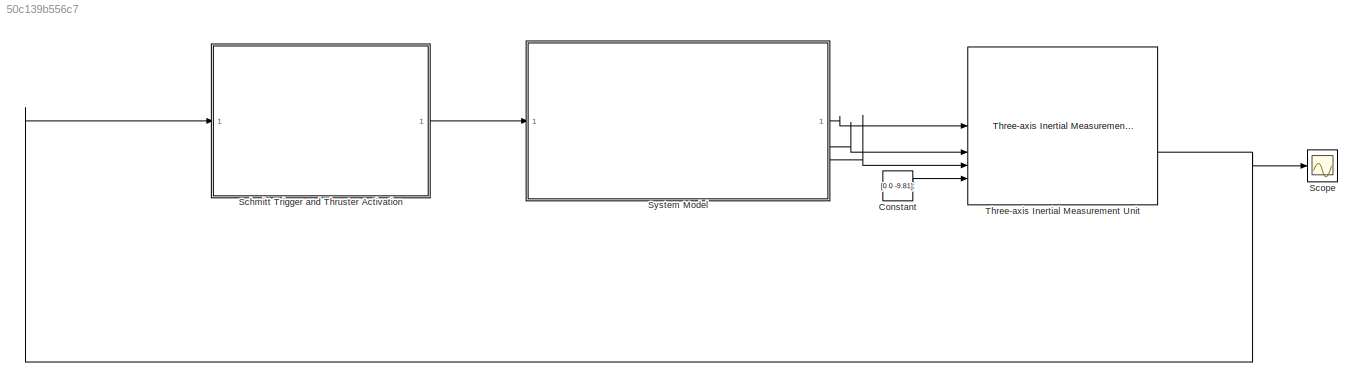
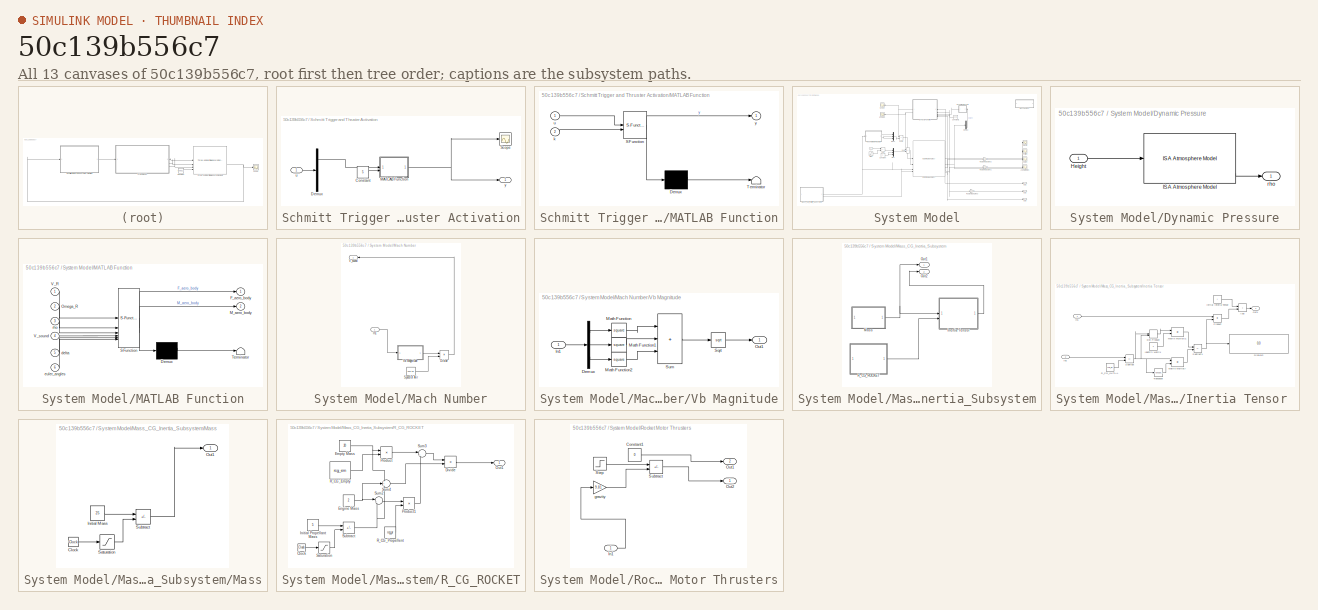
[diagram: thumbnail index - all 13 canvases of the model, root first then tree order]
MODEL slx_50c139b556c7
KIND model
CONFIG AbsTol = auto
CONFIG EnableMultiTasking = off
CONFIG FixedStep = auto
CONFIG MaxStep = auto
CONFIG MinStep = auto
CONFIG RelTol = 1e-3
CONFIG SampleTimeConstraint = Unconstrained
CONFIG SolverName = VariableStepAuto
CONFIG StartTime = 0.0
CONFIG StopTime = 35
BLOCK [Constant] Constant
  Value = [0 0 -9.81];
BLOCK [SubSystem] Schmitt Trigger and Thruster Activation
BLOCK [Constant] Schmitt Trigger and Thruster Activation/Constant
  Value = 5
BLOCK [Demux] Schmitt Trigger and Thruster Activation/Demux
  Outputs = 3
BLOCK [SubSystem] Schmitt Trigger and Thruster Activation/MATLAB Function
  ErrorFcn = Stateflow.Translate.translate
  PermitHierarchicalResolution = ExplicitOnly
  SFBlockType = MATLAB Function
  TreatAsAtomicUnit = on
BLOCK [Demux] Schmitt Trigger and Thruster Activation/MATLAB Function/ Demux 
  Outputs = 1
BLOCK [S-Function] Schmitt Trigger and Thruster Activation/MATLAB Function/ SFunction 
  EnableBusSupport = off
  FunctionName = sf_sfun
  PortCounts = [2 2]
  SFcnIsStateOwnerBlock = off
  SFunctionDeploymentMode = off
  Tag = Stateflow S-Function 2
BLOCK [Terminator] Schmitt Trigger and Thruster Activation/MATLAB Function/ Terminator 
BLOCK [Inport] Schmitt Trigger and Thruster Activation/MATLAB Function/k
  Port = 2
BLOCK [Inport] Schmitt Trigger and Thruster Activation/MATLAB Function/u
BLOCK [Outport] Schmitt Trigger and Thruster Activation/MATLAB Function/y
BLOCK [Scope] Schmitt Trigger and Thruster Activation/Scope
  ActiveDisplayYMaximum = 1
  ActiveDisplayYMinimum = -1
  DataLoggingVariableName = ScopeData1
  Floating = off
  GraphicalSettings = {"GraphicalSettings":{"LegacySettings":true,"Style":{"Style":{"AxesColor":"[0 0 0]","ChannelNames":[""],"ColorOrder":"[1 1 0.0666666666666667;0.0745098039215686 0.623529411764706 1;1 0.411764705882353 0.16078431372549;0.392156862745098 0.831372549019608 0.0745098039215686;0.717647058823529 0.274509803921569 1;0.0588235294117647 1 1;1 0.0745098039215686 0.650980392156863]","CurrentConfiguration":"e...<+343ch>
  MultipleDisplayCache = [{"MaxYLimMag":1,"MaxYLimReal":1,"MinYLimMag":0,"MinYLimReal":-1,"PlotAsMagnitudePhase":false,"ShowGrid":true,"ShowLegend":false,"Title":"%<SignalLabel>","YLabel":""}]
  NumInputPorts = 1
  WasSavedAsWebScope = on
BLOCK [Inport] Schmitt Trigger and Thruster Activation/u
BLOCK [Outport] Schmitt Trigger and Thruster Activation/y
BLOCK [Scope] Scope
  ActiveDisplayYMaximum = 684.51815
  ActiveDisplayYMinimum = -512.19994
  DataLoggingVariableName = ScopeData1
  Floating = off
  GraphicalSettings = {"GraphicalSettings":{"LegacySettings":true,"Style":{"Style":{"AxesColor":"[0 0 0]","ChannelNames":[""],"ColorOrder":"[1 1 0.0666666666666667;0.0745098039215686 0.623529411764706 1;1 0.411764705882353 0.16078431372549;0.392156862745098 0.831372549019608 0.0745098039215686;0.717647058823529 0.274509803921569 1;0.0588235294117647 1 1;1 0.0745098039215686 0.650980392156863]","CurrentConfiguration":"e...<+349ch>
  MultipleDisplayCache = [{"MaxYLimMag":684.51815,"MaxYLimReal":684.51815,"MinYLimMag":0,"MinYLimReal":-512.19994,"PlotAsMagnitudePhase":false,"ShowGrid":true,"ShowLegend":false,"Title":"%<SignalLabel>","YLabel":""}]
  NumInputPorts = 1
  WasSavedAsWebScope = on
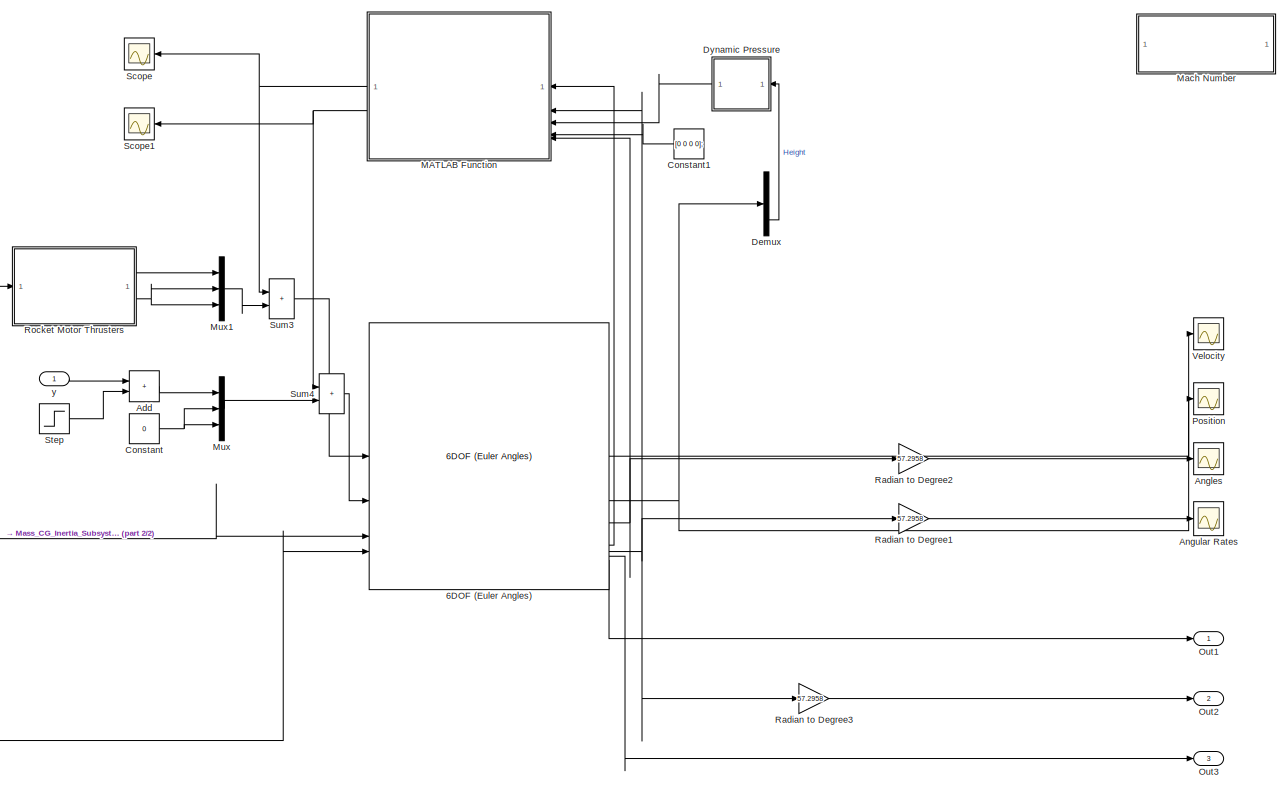
[diagram: System Model - part 1/2, center side, full height]
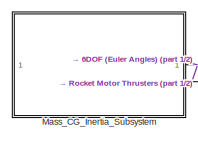
[diagram: System Model - part 2/2, bottom left region]
BLOCK [SubSystem] System Model
BLOCK [Reference] System Model/6DOF (Euler Angles)  REF=aerolibobsolete/6DOF (Euler Angles)
  SourceBlock = aerolibobsolete/6DOF (Euler Angles)
  SourceType = 6DOF EoM (Body Axis)
BLOCK [Sum] System Model/Add
  IconShape = rectangular
BLOCK [Scope] System Model/Angles
  ActiveDisplayYMaximum = 224.80777
  ActiveDisplayYMinimum = -224.95066
  DataLoggingVariableName = ScopeData4
  Floating = off
  GraphicalSettings = {"GraphicalSettings":{"LegacySettings":true,"Style":{"Style":{"AxesColor":"[0 0 0]","ChannelNames":[""],"ColorOrder":"[1 1 0.0666666666666667;0.0745098039215686 0.623529411764706 1;1 0.411764705882353 0.16078431372549;0.392156862745098 0.831372549019608 0.0745098039215686;0.717647058823529 0.274509803921569 1;0.0588235294117647 1 1;1 0.0745098039215686 0.650980392156863]","CurrentConfiguration":"e...<+409ch>
  MultipleDisplayCache = [{"MaxYLimMag":224.95066,"MaxYLimReal":224.80777,"MinYLimMag":0,"MinYLimReal":-224.95066,"PlotAsMagnitudePhase":false,"ShowGrid":true,"ShowLegend":true,"Title":"%<SignalLabel>","YLabel":""}]
  NumInputPorts = 1
  ShowLegend = on
  WasSavedAsWebScope = on
BLOCK [Scope] System Model/Angular Rates
  ActiveDisplayYMaximum = 685.03419
  ActiveDisplayYMinimum = -512.27604
  DataLoggingVariableName = ScopeData1
  Floating = off
  GraphicalSettings = {"GraphicalSettings":{"LegacySettings":true,"Style":{"AxesScalingProperties":{"ScaleAxesLimitsAtStop":false},"Style":{"AxesColor":"[0 0 0]","ChannelNames":[""],"ColorOrder":"[1 1 0.0666666666666667;0.0745098039215686 0.623529411764706 1;1 0.411764705882353 0.16078431372549;0.392156862745098 0.831372549019608 0.0745098039215686;0.717647058823529 0.274509803921569 1;0.0588235294117647 1 1;1 0.074509...<+476ch>
  MultipleDisplayCache = [{"MaxYLimMag":685.03419,"MaxYLimReal":685.03419,"MinYLimMag":0,"MinYLimReal":-512.27604,"PlotAsMagnitudePhase":false,"ShowGrid":true,"ShowLegend":true,"Title":"%<SignalLabel>","YLabel":""}]
  NumInputPorts = 1
  ShowLegend = on
  WasSavedAsWebScope = on
BLOCK [Constant] System Model/Constant
  Value = 0
BLOCK [Constant] System Model/Constant1
  NameLocation = top
  Value = [0 0 0 0];
BLOCK [Demux] System Model/Demux
  Outputs = 3
BLOCK [SubSystem] System Model/Dynamic Pressure
  NameLocation = top
BLOCK [Inport] System Model/Dynamic Pressure/Height
BLOCK [Reference] System Model/Dynamic Pressure/ISA Atmosphere Model  REF=aerolibatmos2/ISA Atmosphere Model
  SourceBlock = aerolibatmos2/ISA Atmosphere Model
  SourceType = International Standard Atmosphere Model
BLOCK [Outport] System Model/Dynamic Pressure/rho
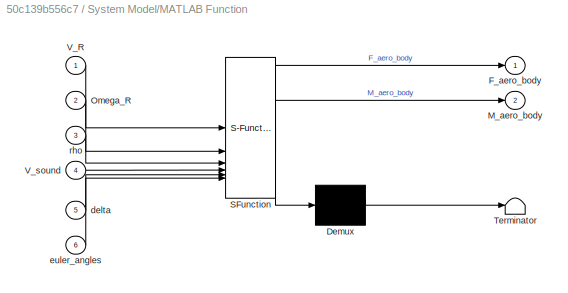
BLOCK [SubSystem] System Model/MATLAB Function
  ErrorFcn = Stateflow.Translate.translate
  NameLocation = top
  PermitHierarchicalResolution = ExplicitOnly
  SFBlockType = MATLAB Function
  TreatAsAtomicUnit = on
BLOCK [Demux] System Model/MATLAB Function/ Demux 
  Outputs = 1
BLOCK [S-Function] System Model/MATLAB Function/ SFunction 
  EnableBusSupport = off
  FunctionName = sf_sfun
  PortCounts = [6 3]
  SFcnIsStateOwnerBlock = off
  SFunctionDeploymentMode = off
  Tag = Stateflow S-Function 1
BLOCK [Terminator] System Model/MATLAB Function/ Terminator 
BLOCK [Outport] System Model/MATLAB Function/F_aero_body
BLOCK [Outport] System Model/MATLAB Function/M_aero_body
  Port = 2
BLOCK [Inport] System Model/MATLAB Function/Omega_R
  Port = 2
BLOCK [Inport] System Model/MATLAB Function/V_R
BLOCK [Inport] System Model/MATLAB Function/V_sound
  Port = 4
BLOCK [Inport] System Model/MATLAB Function/delta
  Port = 5
BLOCK [Inport] System Model/MATLAB Function/euler_angles
  Port = 6
BLOCK [Inport] System Model/MATLAB Function/rho
  Port = 3
BLOCK [SubSystem] System Model/Mach Number
  Commented = on
  NameLocation = top
BLOCK [Product] System Model/Mach Number/Divide
  Inputs = */
BLOCK [Inport] System Model/Mach Number/In1
BLOCK [Constant] System Model/Mach Number/Speed of Air
  Value = 340.29
BLOCK [Outport] System Model/Mach Number/V_sound
BLOCK [SubSystem] System Model/Mach Number/Vb Magnitude
BLOCK [Demux] System Model/Mach Number/Vb Magnitude/Demux
  Outputs = 3
BLOCK [Inport] System Model/Mach Number/Vb Magnitude/In1
BLOCK [Math] System Model/Mach Number/Vb Magnitude/Math Function
  Operator = square
BLOCK [Math] System Model/Mach Number/Vb Magnitude/Math Function1
  Operator = square
BLOCK [Math] System Model/Mach Number/Vb Magnitude/Math Function2
  Operator = square
BLOCK [Outport] System Model/Mach Number/Vb Magnitude/Out1
BLOCK [Sqrt] System Model/Mach Number/Vb Magnitude/Sqrt
BLOCK [Sum] System Model/Mach Number/Vb Magnitude/Sum
  IconShape = rectangular
  Inputs = |+++
BLOCK [SubSystem] System Model/Mass_CG_Inertia_Subsystem
BLOCK [SubSystem] System Model/Mass_CG_Inertia_Subsystem/Inertia Tensor 
BLOCK [Sum] System Model/Mass_CG_Inertia_Subsystem/Inertia Tensor /Add
  IconShape = rectangular
BLOCK [Display] System Model/Mass_CG_Inertia_Subsystem/Inertia Tensor /Display2
  Decimation = 1
BLOCK [DotProduct] System Model/Mass_CG_Inertia_Subsystem/Inertia Tensor /Dot Product
  OutDataTypeStr = Inherit: Inherit via internal rule
BLOCK [Constant] System Model/Mass_CG_Inertia_Subsystem/Inertia Tensor /Identity Matrix
BLOCK [Inport] System Model/Mass_CG_Inertia_Subsystem/Inertia Tensor /In1
BLOCK [Inport] System Model/Mass_CG_Inertia_Subsystem/Inertia Tensor /In2
  Port = 2
BLOCK [Constant] System Model/Mass_CG_Inertia_Subsystem/Inertia Tensor /Initial Interia Tensor
  Value = I
BLOCK [Product] System Model/Mass_CG_Inertia_Subsystem/Inertia Tensor /Matrix Multiply
  Multiplication = Matrix(*)
BLOCK [Product] System Model/Mass_CG_Inertia_Subsystem/Inertia Tensor /Matrix Multiply1
  Multiplication = Matrix(*)
BLOCK [Outport] System Model/Mass_CG_Inertia_Subsystem/Inertia Tensor /Out1
BLOCK [Product] System Model/Mass_CG_Inertia_Subsystem/Inertia Tensor /Product
BLOCK [Constant] System Model/Mass_CG_Inertia_Subsystem/Inertia Tensor /R_CG_INITIAL
  Value = rcg_ini
BLOCK [Sum] System Model/Mass_CG_Inertia_Subsystem/Inertia Tensor /Subtract
  IconShape = rectangular
  Inputs = +-
BLOCK [Sum] System Model/Mass_CG_Inertia_Subsystem/Inertia Tensor /Subtract1
  IconShape = rectangular
  Inputs = +-
BLOCK [Math] System Model/Mass_CG_Inertia_Subsystem/Inertia Tensor /Transpose
  Operator = transpose
BLOCK [SubSystem] System Model/Mass_CG_Inertia_Subsystem/Mass
BLOCK [Clock] System Model/Mass_CG_Inertia_Subsystem/Mass/Clock
BLOCK [Constant] System Model/Mass_CG_Inertia_Subsystem/Mass/Initial Mass
  Value = 25
BLOCK [Outport] System Model/Mass_CG_Inertia_Subsystem/Mass/Out1
BLOCK [Saturate] System Model/Mass_CG_Inertia_Subsystem/Mass/Saturation
  LowerLimit = 0
  UpperLimit = 5
BLOCK [Sum] System Model/Mass_CG_Inertia_Subsystem/Mass/Subtract
  IconShape = rectangular
  Inputs = +-
BLOCK [Outport] System Model/Mass_CG_Inertia_Subsystem/Out1
BLOCK [Outport] System Model/Mass_CG_Inertia_Subsystem/Out2
  Port = 2
BLOCK [SubSystem] System Model/Mass_CG_Inertia_Subsystem/R_CG_ROCKET
BLOCK [Clock] System Model/Mass_CG_Inertia_Subsystem/R_CG_ROCKET/Clock
BLOCK [Product] System Model/Mass_CG_Inertia_Subsystem/R_CG_ROCKET/Divide
  Inputs = */
BLOCK [Constant] System Model/Mass_CG_Inertia_Subsystem/R_CG_ROCKET/Empty Mass
  Value = 20
BLOCK [Constant] System Model/Mass_CG_Inertia_Subsystem/R_CG_ROCKET/Engine Mass
  Value = 2
BLOCK [Constant] System Model/Mass_CG_Inertia_Subsystem/R_CG_ROCKET/Initial Propellant Mass
  Value = 5
BLOCK [Outport] System Model/Mass_CG_Inertia_Subsystem/R_CG_ROCKET/Out1
BLOCK [Product] System Model/Mass_CG_Inertia_Subsystem/R_CG_ROCKET/Product
BLOCK [Product] System Model/Mass_CG_Inertia_Subsystem/R_CG_ROCKET/Product1
BLOCK [Constant] System Model/Mass_CG_Inertia_Subsystem/R_CG_ROCKET/R_CG_Empty
  Value = rcg_em
BLOCK [Constant] System Model/Mass_CG_Inertia_Subsystem/R_CG_ROCKET/R_CG_Propellent
  Value = rcg_pr
BLOCK [Saturate] System Model/Mass_CG_Inertia_Subsystem/R_CG_ROCKET/Saturation
  LowerLimit = 0
  UpperLimit = 5
BLOCK [Sum] System Model/Mass_CG_Inertia_Subsystem/R_CG_ROCKET/Subtract
  IconShape = rectangular
  Inputs = +-
BLOCK [Sum] System Model/Mass_CG_Inertia_Subsystem/R_CG_ROCKET/Sum2
  Inputs = |++
BLOCK [Sum] System Model/Mass_CG_Inertia_Subsystem/R_CG_ROCKET/Sum3
  Inputs = |++
BLOCK [Sum] System Model/Mass_CG_Inertia_Subsystem/R_CG_ROCKET/Sum4
  Inputs = +++
BLOCK [Mux] System Model/Mux
  DisplayOption = bar
  Inputs = 3
BLOCK [Mux] System Model/Mux1
  DisplayOption = bar
  Inputs = 3
BLOCK [Outport] System Model/Out1
BLOCK [Outport] System Model/Out2
  Port = 2
BLOCK [Outport] System Model/Out3
  Port = 3
BLOCK [Scope] System Model/Position
  ActiveDisplayYMaximum = 905.94681
  ActiveDisplayYMinimum = -131.25002
  DataLoggingVariableName = ScopeData3
  Floating = off
  GraphicalSettings = {"GraphicalSettings":{"LegacySettings":true,"Style":{"Style":{"AxesColor":"[0 0 0]","ChannelNames":["Z-AXIS","X-Axis","Y-Axis"],"ColorOrder":"[1 1 0.0666666666666667;0.0745098039215686 0.623529411764706 1;1 0.411764705882353 0.16078431372549;0.392156862745098 0.831372549019608 0.0745098039215686;0.717647058823529 0.274509803921569 1;0.0588235294117647 1 1;1 0.0745098039215686 0.650980392156863]","...<+444ch>
  MultipleDisplayCache = [{"MaxYLimMag":905.94681,"MaxYLimReal":905.94681,"MinYLimMag":0,"MinYLimReal":-131.25002,"PlotAsMagnitudePhase":false,"ShowGrid":true,"ShowLegend":true,"Title":"%<SignalLabel>","YLabel":""}]
  NumInputPorts = 1
  ShowLegend = on
  WasSavedAsWebScope = on
  WindowPosition = [425 241 560 420]
BLOCK [Gain] System Model/Radian to Degree1
  Gain = 57.2958
BLOCK [Gain] System Model/Radian to Degree2
  Gain = 57.2958
BLOCK [Gain] System Model/Radian to Degree3
  Gain = 57.2958
BLOCK [SubSystem] System Model/Rocket Motor Thrusters
BLOCK [Constant] System Model/Rocket Motor Thrusters/Constant1
  Value = 0
BLOCK [Inport] System Model/Rocket Motor Thrusters/In1
BLOCK [Outport] System Model/Rocket Motor Thrusters/Out1
  Port = 2
BLOCK [Outport] System Model/Rocket Motor Thrusters/Out2
BLOCK [Step] System Model/Rocket Motor Thrusters/Step
  After = 0
  Before = 800
  SampleTime = 0
  Time = 5
BLOCK [Sum] System Model/Rocket Motor Thrusters/Subtract
  IconShape = rectangular
  Inputs = +-
BLOCK [Gain] System Model/Rocket Motor Thrusters/gravity
  Gain = 9.81
BLOCK [Scope] System Model/Scope
  ActiveDisplayYMaximum = 779.19421
  ActiveDisplayYMinimum = -1160.96468
  DataLoggingVariableName = ScopeData1
  Floating = off
  GraphicalSettings = {"GraphicalSettings":{"LegacySettings":true,"Style":{"AxesScalingProperties":{"ScaleAxesLimitsAtStop":false},"Style":{"AxesColor":"[0 0 0]","ChannelNames":[""],"ColorOrder":"[1 1 0.0666666666666667;0.0745098039215686 0.623529411764706 1;1 0.411764705882353 0.16078431372549;0.392156862745098 0.831372549019608 0.0745098039215686;0.717647058823529 0.274509803921569 1;0.0588235294117647 1 1;1 0.074509...<+430ch>
  MultipleDisplayCache = [{"MaxYLimMag":1160.96468,"MaxYLimReal":779.19421,"MinYLimMag":0,"MinYLimReal":-1160.96468,"PlotAsMagnitudePhase":false,"ShowGrid":true,"ShowLegend":true,"Title":"%<SignalLabel>","YLabel":""}]
  NameLocation = top
  NumInputPorts = 1
  ShowLegend = on
  WasSavedAsWebScope = on
BLOCK [Scope] System Model/Scope1
  ActiveDisplayYMaximum = 1615.36348
  ActiveDisplayYMinimum = -1437.1187
  DataLoggingVariableName = ScopeData2
  Floating = off
  GraphicalSettings = {"GraphicalSettings":{"LegacySettings":true,"Style":{"AxesScalingProperties":{"ScaleAxesLimitsAtStop":false},"Style":{"AxesColor":"[0 0 0]","ChannelNames":[""],"ColorOrder":"[1 1 0.0666666666666667;0.0745098039215686 0.623529411764706 1;1 0.411764705882353 0.16078431372549;0.392156862745098 0.831372549019608 0.0745098039215686;0.717647058823529 0.274509803921569 1;0.0588235294117647 1 1;1 0.074509...<+430ch>
  MultipleDisplayCache = [{"MaxYLimMag":1615.36348,"MaxYLimReal":1615.36348,"MinYLimMag":0,"MinYLimReal":-1437.1187,"PlotAsMagnitudePhase":false,"ShowGrid":true,"ShowLegend":false,"Title":"%<SignalLabel>","YLabel":""}]
  NameLocation = top
  NumInputPorts = 1
  WasSavedAsWebScope = on
BLOCK [Step] System Model/Step
  After = 0
  Before = 0.1
  SampleTime = 0
  Time = 10
BLOCK [Sum] System Model/Sum3
  IconShape = rectangular
  Inputs = |++
BLOCK [Sum] System Model/Sum4
  IconShape = rectangular
  Inputs = |++
BLOCK [Scope] System Model/Velocity
  ActiveDisplayYMaximum = 134.24121
  ActiveDisplayYMinimum = -39.03095
  DataLoggingVariableName = ScopeData2
  Floating = off
  GraphicalSettings = {"GraphicalSettings":{"LegacySettings":true,"Style":{"Style":{"AxesColor":"[0 0 0]","ChannelNames":[""],"ColorOrder":"[1 1 0.0666666666666667;0.0745098039215686 0.623529411764706 1;1 0.411764705882353 0.16078431372549;0.392156862745098 0.831372549019608 0.0745098039215686;0.717647058823529 0.274509803921569 1;0.0588235294117647 1 1;1 0.0745098039215686 0.650980392156863]","CurrentConfiguration":"e...<+349ch>
  MultipleDisplayCache = [{"MaxYLimMag":134.24121,"MaxYLimReal":134.24121,"MinYLimMag":0,"MinYLimReal":-39.03095,"PlotAsMagnitudePhase":false,"ShowGrid":true,"ShowLegend":false,"Title":"%<SignalLabel>","YLabel":""}]
  NumInputPorts = 1
  WasSavedAsWebScope = on
BLOCK [Inport] System Model/y
BLOCK [Reference] Three-axis Inertial Measurement Unit  REF=aerolibnav/Three-axis Inertial
Measurement Unit
  SourceBlock = aerolibnav/Three-axis Inertial\nMeasurement Unit
  SourceType = Three-axis Inertial Measurement Unit
LINE Constant:1 -> Three-axis Inertial Measurement Unit:5
LINE Schmitt Trigger and Thruster Activation/Constant:1 -> Schmitt Trigger and Thruster Activation/MATLAB Function:2
LINE Schmitt Trigger and Thruster Activation/Demux:1 -> Schmitt Trigger and Thruster Activation/MATLAB Function:1
NET Schmitt Trigger and Thruster Activation/MATLAB Function:1 -> Schmitt Trigger and Thruster Activation/Scope:1, Schmitt Trigger and Thruster Activation/y:1
LINE Schmitt Trigger and Thruster Activation/u:1 -> Schmitt Trigger and Thruster Activation/Demux:1
LINE Schmitt Trigger and Thruster Activation:1 -> System Model:1
LINE System Model/6DOF (Euler Angles):1 -> System Model/Velocity:1
NET System Model/6DOF (Euler Angles):2 -> System Model/Demux:1, System Model/Position:1
NET System Model/6DOF (Euler Angles):3 -> System Model/MATLAB Function:6, System Model/Radian to Degree2:1
LINE System Model/6DOF (Euler Angles):5 -> System Model/MATLAB Function:1
NET System Model/6DOF (Euler Angles):6 -> System Model/MATLAB Function:2, System Model/Radian to Degree1:1, System Model/Radian to Degree3:1
LINE System Model/6DOF (Euler Angles):7 -> System Model/Out3:1
LINE System Model/6DOF (Euler Angles):8 -> System Model/Out1:1
LINE System Model/Add:1 -> System Model/Mux:1
LINE System Model/Constant1:1 -> System Model/MATLAB Function:5
NET System Model/Constant:1 -> System Model/Mux:2, System Model/Mux:3
LINE System Model/Demux:3 -> System Model/Dynamic Pressure:1
LINE System Model/Dynamic Pressure/Height:1 -> System Model/Dynamic Pressure/ISA Atmosphere Model:1
LINE System Model/Dynamic Pressure/ISA Atmosphere Model:4 -> System Model/Dynamic Pressure/rho:1
LINE System Model/Dynamic Pressure:1 -> System Model/MATLAB Function:3
NET System Model/MATLAB Function:1 -> System Model/Scope:1, System Model/Sum3:1
NET System Model/MATLAB Function:2 -> System Model/Scope1:1, System Model/Sum4:1
LINE System Model/Mach Number/Divide:1 -> System Model/Mach Number/V_sound:1
LINE System Model/Mach Number/In1:1 -> System Model/Mach Number/Vb Magnitude:1
LINE System Model/Mach Number/Speed of Air:1 -> System Model/Mach Number/Divide:2
LINE System Model/Mach Number/Vb Magnitude/Demux:1 -> System Model/Mach Number/Vb Magnitude/Math Function:1
LINE System Model/Mach Number/Vb Magnitude/Demux:2 -> System Model/Mach Number/Vb Magnitude/Math Function1:1
LINE System Model/Mach Number/Vb Magnitude/Demux:3 -> System Model/Mach Number/Vb Magnitude/Math Function2:1
LINE System Model/Mach Number/Vb Magnitude/In1:1 -> System Model/Mach Number/Vb Magnitude/Demux:1
LINE System Model/Mach Number/Vb Magnitude/Math Function1:1 -> System Model/Mach Number/Vb Magnitude/Sum:2
LINE System Model/Mach Number/Vb Magnitude/Math Function2:1 -> System Model/Mach Number/Vb Magnitude/Sum:3
LINE System Model/Mach Number/Vb Magnitude/Math Function:1 -> System Model/Mach Number/Vb Magnitude/Sum:1
LINE System Model/Mach Number/Vb Magnitude/Sqrt:1 -> System Model/Mach Number/Vb Magnitude/Out1:1
LINE System Model/Mach Number/Vb Magnitude/Sum:1 -> System Model/Mach Number/Vb Magnitude/Sqrt:1
LINE System Model/Mach Number/Vb Magnitude:1 -> System Model/Mach Number/Divide:1
LINE System Model/Mass_CG_Inertia_Subsystem/Inertia Tensor /Add:1 -> System Model/Mass_CG_Inertia_Subsystem/Inertia Tensor /Out1:1
LINE System Model/Mass_CG_Inertia_Subsystem/Inertia Tensor /Dot Product:1 -> System Model/Mass_CG_Inertia_Subsystem/Inertia Tensor /Matrix Multiply1:1
LINE System Model/Mass_CG_Inertia_Subsystem/Inertia Tensor /Identity Matrix:1 -> System Model/Mass_CG_Inertia_Subsystem/Inertia Tensor /Matrix Multiply1:2
LINE System Model/Mass_CG_Inertia_Subsystem/Inertia Tensor /In1:1 -> System Model/Mass_CG_Inertia_Subsystem/Inertia Tensor /Product:1
LINE System Model/Mass_CG_Inertia_Subsystem/Inertia Tensor /In2:1 -> System Model/Mass_CG_Inertia_Subsystem/Inertia Tensor /Subtract:1
LINE System Model/Mass_CG_Inertia_Subsystem/Inertia Tensor /Initial Interia Tensor:1 -> System Model/Mass_CG_Inertia_Subsystem/Inertia Tensor /Add:1
LINE System Model/Mass_CG_Inertia_Subsystem/Inertia Tensor /Matrix Multiply1:1 -> System Model/Mass_CG_Inertia_Subsystem/Inertia Tensor /Subtract1:1
LINE System Model/Mass_CG_Inertia_Subsystem/Inertia Tensor /Matrix Multiply:1 -> System Model/Mass_CG_Inertia_Subsystem/Inertia Tensor /Subtract1:2
LINE System Model/Mass_CG_Inertia_Subsystem/Inertia Tensor /Product:1 -> System Model/Mass_CG_Inertia_Subsystem/Inertia Tensor /Add:2
LINE System Model/Mass_CG_Inertia_Subsystem/Inertia Tensor /R_CG_INITIAL:1 -> System Model/Mass_CG_Inertia_Subsystem/Inertia Tensor /Subtract:2
NET System Model/Mass_CG_Inertia_Subsystem/Inertia Tensor /Subtract1:1 -> System Model/Mass_CG_Inertia_Subsystem/Inertia Tensor /Display2:1, System Model/Mass_CG_Inertia_Subsystem/Inertia Tensor /Product:2
NET System Model/Mass_CG_Inertia_Subsystem/Inertia Tensor /Subtract:1 -> System Model/Mass_CG_Inertia_Subsystem/Inertia Tensor /Dot Product:1, System Model/Mass_CG_Inertia_Subsystem/Inertia Tensor /Dot Product:2, System Model/Mass_CG_Inertia_Subsystem/Inertia Tensor /Matrix Multiply:1, System Model/Mass_CG_Inertia_Subsystem/Inertia Tensor /Transpose:1
LINE System Model/Mass_CG_Inertia_Subsystem/Inertia Tensor /Transpose:1 -> System Model/Mass_CG_Inertia_Subsystem/Inertia Tensor /Matrix Multiply:2
LINE System Model/Mass_CG_Inertia_Subsystem/Inertia Tensor :1 -> System Model/Mass_CG_Inertia_Subsystem/Out2:1
LINE System Model/Mass_CG_Inertia_Subsystem/Mass/Clock:1 -> System Model/Mass_CG_Inertia_Subsystem/Mass/Saturation:1
LINE System Model/Mass_CG_Inertia_Subsystem/Mass/Initial Mass:1 -> System Model/Mass_CG_Inertia_Subsystem/Mass/Subtract:1
LINE System Model/Mass_CG_Inertia_Subsystem/Mass/Saturation:1 -> System Model/Mass_CG_Inertia_Subsystem/Mass/Subtract:2
LINE System Model/Mass_CG_Inertia_Subsystem/Mass/Subtract:1 -> System Model/Mass_CG_Inertia_Subsystem/Mass/Out1:1
NET System Model/Mass_CG_Inertia_Subsystem/Mass:1 -> System Model/Mass_CG_Inertia_Subsystem/Inertia Tensor :1, System Model/Mass_CG_Inertia_Subsystem/Out1:1
LINE System Model/Mass_CG_Inertia_Subsystem/R_CG_ROCKET/Clock:1 -> System Model/Mass_CG_Inertia_Subsystem/R_CG_ROCKET/Saturation:1
LINE System Model/Mass_CG_Inertia_Subsystem/R_CG_ROCKET/Divide:1 -> System Model/Mass_CG_Inertia_Subsystem/R_CG_ROCKET/Out1:1
NET System Model/Mass_CG_Inertia_Subsystem/R_CG_ROCKET/Empty Mass:1 -> System Model/Mass_CG_Inertia_Subsystem/R_CG_ROCKET/Product:1, System Model/Mass_CG_Inertia_Subsystem/R_CG_ROCKET/Sum4:1
NET System Model/Mass_CG_Inertia_Subsystem/R_CG_ROCKET/Engine Mass:1 -> System Model/Mass_CG_Inertia_Subsystem/R_CG_ROCKET/Sum2:1, System Model/Mass_CG_Inertia_Subsystem/R_CG_ROCKET/Sum4:2
LINE System Model/Mass_CG_Inertia_Subsystem/R_CG_ROCKET/Initial Propellant Mass:1 -> System Model/Mass_CG_Inertia_Subsystem/R_CG_ROCKET/Subtract:1
LINE System Model/Mass_CG_Inertia_Subsystem/R_CG_ROCKET/Product1:1 -> System Model/Mass_CG_Inertia_Subsystem/R_CG_ROCKET/Sum3:2
LINE System Model/Mass_CG_Inertia_Subsystem/R_CG_ROCKET/Product:1 -> System Model/Mass_CG_Inertia_Subsystem/R_CG_ROCKET/Sum3:1
LINE System Model/Mass_CG_Inertia_Subsystem/R_CG_ROCKET/R_CG_Empty:1 -> System Model/Mass_CG_Inertia_Subsystem/R_CG_ROCKET/Product:2
LINE System Model/Mass_CG_Inertia_Subsystem/R_CG_ROCKET/R_CG_Propellent:1 -> System Model/Mass_CG_Inertia_Subsystem/R_CG_ROCKET/Product1:2
LINE System Model/Mass_CG_Inertia_Subsystem/R_CG_ROCKET/Saturation:1 -> System Model/Mass_CG_Inertia_Subsystem/R_CG_ROCKET/Subtract:2
NET System Model/Mass_CG_Inertia_Subsystem/R_CG_ROCKET/Subtract:1 -> System Model/Mass_CG_Inertia_Subsystem/R_CG_ROCKET/Sum2:2, System Model/Mass_CG_Inertia_Subsystem/R_CG_ROCKET/Sum4:3
LINE System Model/Mass_CG_Inertia_Subsystem/R_CG_ROCKET/Sum2:1 -> System Model/Mass_CG_Inertia_Subsystem/R_CG_ROCKET/Product1:1
LINE System Model/Mass_CG_Inertia_Subsystem/R_CG_ROCKET/Sum3:1 -> System Model/Mass_CG_Inertia_Subsystem/R_CG_ROCKET/Divide:1
LINE System Model/Mass_CG_Inertia_Subsystem/R_CG_ROCKET/Sum4:1 -> System Model/Mass_CG_Inertia_Subsystem/R_CG_ROCKET/Divide:2
LINE System Model/Mass_CG_Inertia_Subsystem/R_CG_ROCKET:1 -> System Model/Mass_CG_Inertia_Subsystem/Inertia Tensor :2
NET System Model/Mass_CG_Inertia_Subsystem:1 -> System Model/6DOF (Euler Angles):4, System Model/Rocket Motor Thrusters:1
LINE System Model/Mass_CG_Inertia_Subsystem:2 -> System Model/6DOF (Euler Angles):6
LINE System Model/Mux1:1 -> System Model/Sum3:2
LINE System Model/Mux:1 -> System Model/Sum4:2
LINE System Model/Radian to Degree1:1 -> System Model/Angular Rates:1
LINE System Model/Radian to Degree2:1 -> System Model/Angles:1
LINE System Model/Radian to Degree3:1 -> System Model/Out2:1
LINE System Model/Rocket Motor Thrusters/Constant1:1 -> System Model/Rocket Motor Thrusters/Out1:1
LINE System Model/Rocket Motor Thrusters/In1:1 -> System Model/Rocket Motor Thrusters/gravity:1
LINE System Model/Rocket Motor Thrusters/Step:1 -> System Model/Rocket Motor Thrusters/Subtract:1
LINE System Model/Rocket Motor Thrusters/Subtract:1 -> System Model/Rocket Motor Thrusters/Out2:1
LINE System Model/Rocket Motor Thrusters/gravity:1 -> System Model/Rocket Motor Thrusters/Subtract:2
LINE System Model/Rocket Motor Thrusters:1 -> System Model/Mux1:1
NET System Model/Rocket Motor Thrusters:2 -> System Model/Mux1:2, System Model/Mux1:3
LINE System Model/Step:1 -> System Model/Add:2
LINE System Model/Sum3:1 -> System Model/6DOF (Euler Angles):1
LINE System Model/Sum4:1 -> System Model/6DOF (Euler Angles):2
LINE System Model/y:1 -> System Model/Add:1
LINE System Model:1 -> Three-axis Inertial Measurement Unit:1
LINE System Model:2 -> Three-axis Inertial Measurement Unit:2
LINE System Model:3 -> Three-axis Inertial Measurement Unit:3
NET Three-axis Inertial Measurement Unit:2 -> Schmitt Trigger and Thruster Activation:1, Scope:1
note: NET lines group one-source signal fan-out (src -> all destinations, sorted); 1:1 wires keep LINE
CHART System Model/MATLAB Function states=1 transitions=1
  STATE_LABEL 'eML_blk_kernel()'
  STATE_LABEL 'SCRIPT:\nfunction [F_aero_body, M_aero_body] = aerodynamic_model(V_R, Omega_R, rho, V_sound, delta, euler_angles)\n% AERODYNAMIC_MODEL Calculates aerodynamic forces and moments for the GENESYS rocket.\n%\n% UPDATE: Added logic to rotate the body-frame forces into the Earth-fixed frame.\n%\n% Inputs:\n%   V_R          - 3x1 vector of velocity in the body frame [u, v, w] (m/s)\n%   Omega_R      - 3x1 vector...<+2308ch>'
CHART Schmitt Trigger and Thruster Activation/MATLAB Function states=1 transitions=1
  STATE_LABEL 'eML_blk_kernel()'
  STATE_LABEL "SCRIPT:\nfunction y = fcn(u, k)\n% FCN Implements a thruster controller with a deadband.\n%\n% This function models a thruster's behavior based on an angular rate 'u'.\n% It includes a deadband between -5 and 5, where no thruster is activated.\n%\n% Logic:\n% - If u is greater than 5, the thruster provides -30N of force.\n% - If u is less than -5, the thruster provides 30N of force.\n% - If u is between -5 ...<+670ch>"
CHART  states=0 transitions=0
CHART  states=0 transitions=0
